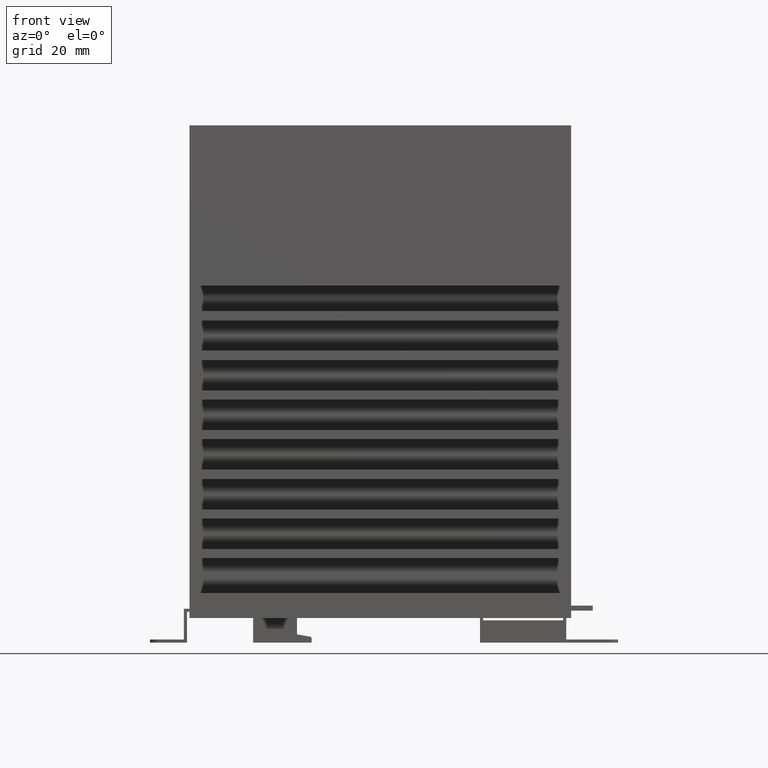
[diagram: clean part render]
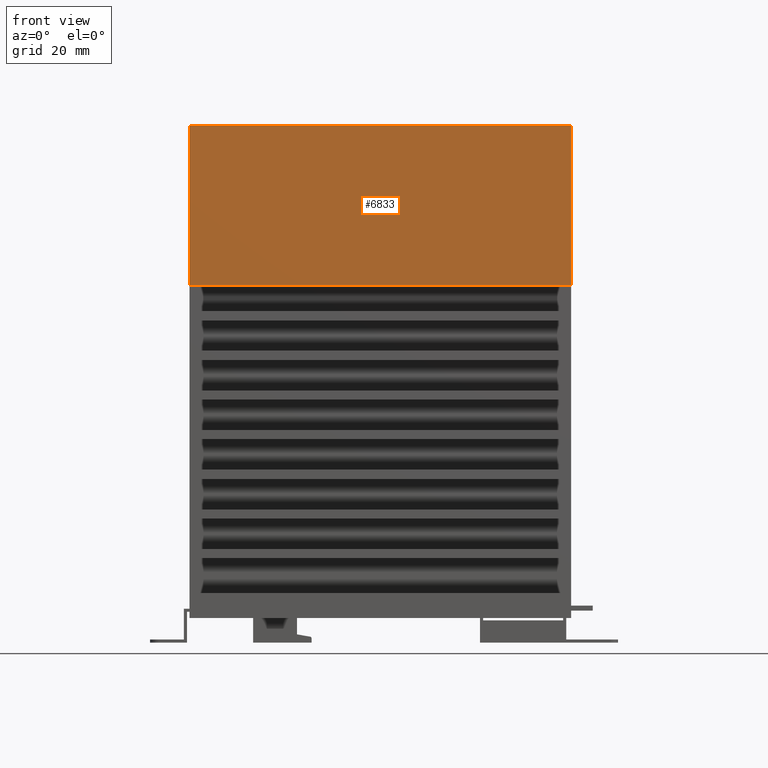
[diagram: same view with one face highlighted and labeled with its STEP entity id]
A machine part, front view. The second image highlights one B-rep face of the part: STEP entity #6833.
In plain terms, the highlighted planar face has unit normal (0, 1, 0).
Its self-contained STEP definition (entity closure, byte-faithful):
#438 = EDGE_CURVE ( 'EDGE450', #7272, #5787, #4403, .T. ) ;
#605 = FACE_OUTER_BOUND ( 'NONE', #2262, .T. ) ;
#697 = VERTEX_POINT ( 'NONE', #2094 ) ;
#2094 = CARTESIAN_POINT ( 'NONE',  ( -1.549999999999999800, -0.8950000000000000200, 2.900000000000000400 ) ) ;
#2262 = EDGE_LOOP ( 'NONE', ( #2800, #2537, #5347, #4835 ) ) ;
#2537 = ORIENTED_EDGE ( 'NONE', *, *, #6647, .F. ) ;
#2628 = DIRECTION ( 'NONE',  ( -1.000000000000000000, 2.449212707644750100E-016, 0.0000000000000000000 ) ) ;
#2674 = VECTOR ( 'NONE', #4231, 39.37007874015748100 ) ;
#2715 = CARTESIAN_POINT ( 'NONE',  ( -1.549999999999999800, -0.8950000000000000200, 3.649999999999999900 ) ) ;
#2735 = CARTESIAN_POINT ( 'NONE',  ( -1.549999999999999800, -0.8950000000000000200, 4.200000000000000200 ) ) ;
#2800 = ORIENTED_EDGE ( 'NONE', *, *, #2925, .T. ) ;
#2925 = EDGE_CURVE ( 'EDGE451', #7272, #697, #4012, .T. ) ;
#3162 = VECTOR ( 'NONE', #5649, 39.37007874015748100 ) ;
#3683 = CARTESIAN_POINT ( 'NONE',  ( -2.192045373342055100E-016, -0.8950000000000000200, 3.000000000000000400 ) ) ;
#3779 = VECTOR ( 'NONE', #6742, 39.37007874015748100 ) ;
#3836 = CARTESIAN_POINT ( 'NONE',  ( -2.192045373342055100E-016, -0.8950000000000000200, 4.200000000000000200 ) ) ;
#4012 = LINE ( 'NONE', #2715, #3779 ) ;
#4231 = DIRECTION ( 'NONE',  ( 1.000000000000000000, -2.449212707644750100E-016, 0.0000000000000000000 ) ) ;
#4343 = CARTESIAN_POINT ( 'NONE',  ( 1.549999999999999800, -0.8950000000000000200, 4.200000000000000200 ) ) ;
#4397 = DIRECTION ( 'NONE',  ( 1.000000000000000000, -2.449212707644750100E-016, 0.0000000000000000000 ) ) ;
#4403 = LINE ( 'NONE', #3836, #2674 ) ;
#4680 = VECTOR ( 'NONE', #2628, 39.37007874015748100 ) ;
#4835 = ORIENTED_EDGE ( 'NONE', *, *, #438, .F. ) ;
#4979 = CARTESIAN_POINT ( 'NONE',  ( 1.549999999999999800, -0.8950000000000000200, 3.000000000000000400 ) ) ;
#5064 = PLANE ( 'NONE',  #7835 ) ;
#5347 = ORIENTED_EDGE ( 'NONE', *, *, #5661, .F. ) ;
#5427 = CARTESIAN_POINT ( 'NONE',  ( -2.192045373342055100E-016, -0.8950000000000000200, 2.900000000000000400 ) ) ;
#5649 = DIRECTION ( 'NONE',  ( 0.0000000000000000000, 0.0000000000000000000, -1.000000000000000000 ) ) ;
#5661 = EDGE_CURVE ( 'EDGE335', #5787, #6555, #8223, .T. ) ;
#5787 = VERTEX_POINT ( 'NONE', #4343 ) ;
#6439 = LINE ( 'NONE', #5427, #4680 ) ;
#6555 = VERTEX_POINT ( 'NONE', #8393 ) ;
#6647 = EDGE_CURVE ( 'EDGE452', #6555, #697, #6439, .T. ) ;
#6742 = DIRECTION ( 'NONE',  ( 0.0000000000000000000, 0.0000000000000000000, -1.000000000000000000 ) ) ;
#6833 = ADVANCED_FACE ( 'FACE162', ( #605 ), #5064, .F. ) ;
#7272 = VERTEX_POINT ( 'NONE', #2735 ) ;
#7835 = AXIS2_PLACEMENT_3D ( 'NONE', #3683, #8302, #4397 ) ;
#8223 = LINE ( 'NONE', #4979, #3162 ) ;
#8302 = DIRECTION ( 'NONE',  ( 2.449212707644750100E-016, 1.000000000000000000, 0.0000000000000000000 ) ) ;
#8393 = CARTESIAN_POINT ( 'NONE',  ( 1.549999999999999800, -0.8950000000000000200, 2.900000000000000400 ) ) ;